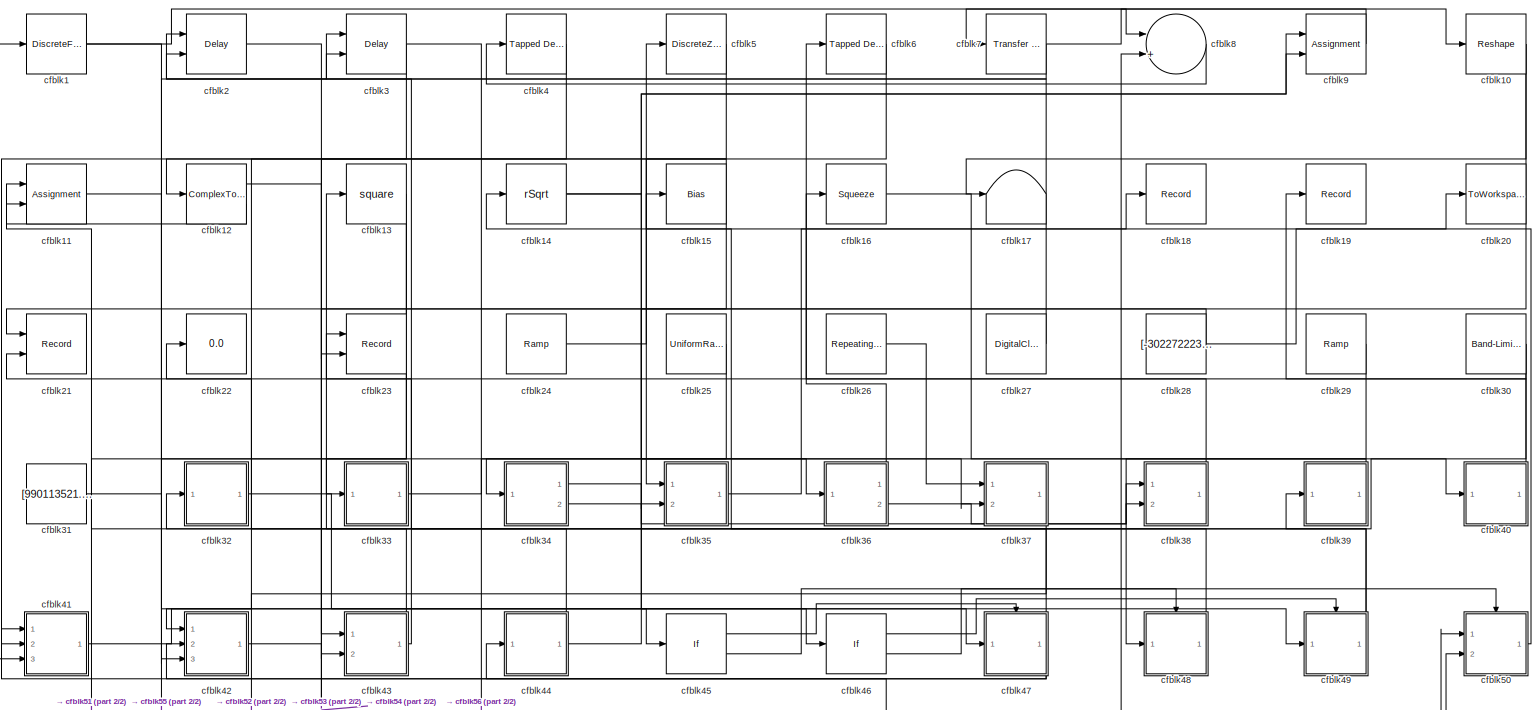
[diagram: root canvas - part 1/2, most of the canvas]
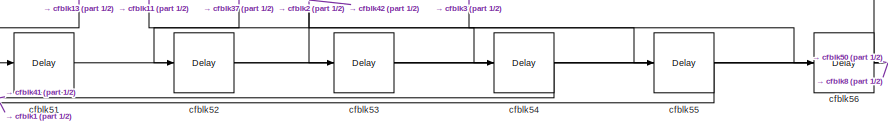
[diagram: root canvas - part 2/2, bottom left region]
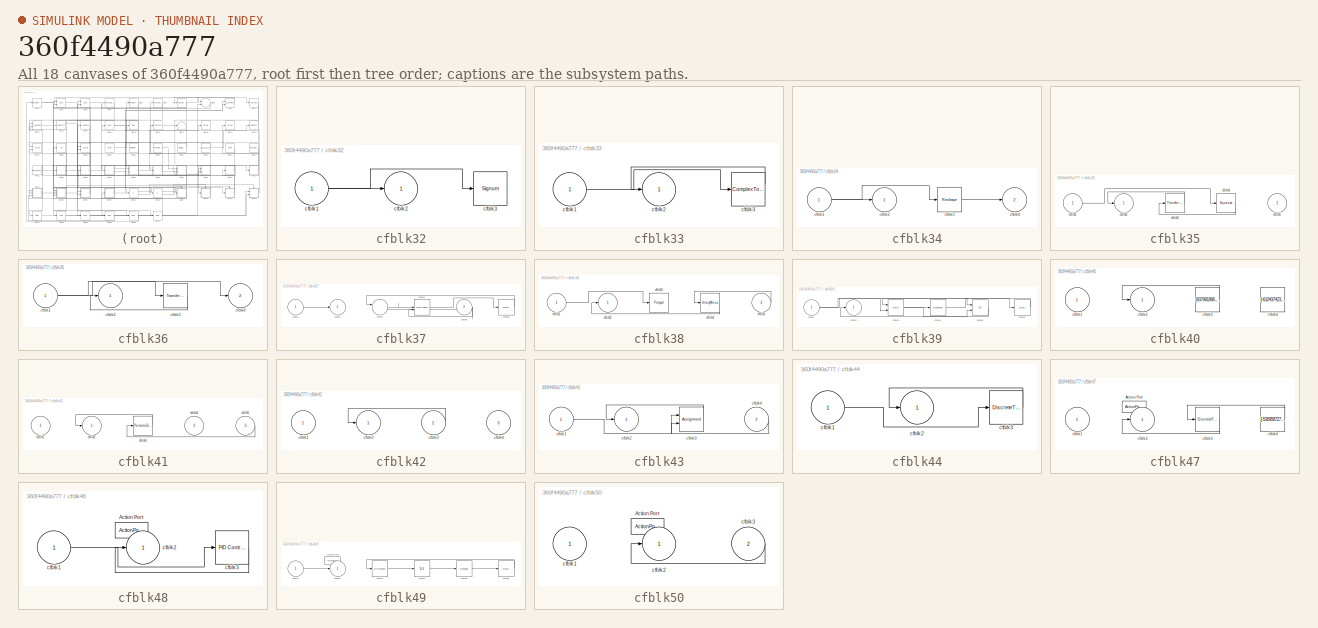
[diagram: thumbnail index - all 18 canvases of the model, root first then tree order]
MODEL slx_360f4490a777
KIND model
CONFIG AbsTol = auto
CONFIG EnableMultiTasking = off
CONFIG FixedStep = auto
CONFIG MaxStep = auto
CONFIG MinStep = auto
CONFIG RelTol = 1e-3
CONFIG SampleTimeConstraint = Unconstrained
CONFIG SolverName = VariableStepAuto
CONFIG StartTime = 0.0
CONFIG StopTime = 10.0
BLOCK [DiscreteFilter] cfblk1
  InputPortMap = u0
  Ports = [1, 1]
  SampleTime = 1
BLOCK [Reshape] cfblk10
  Ports = [1, 1]
BLOCK [Assignment] cfblk11
  DiagnosticForDimensions = Warning
  IndexOptions = Index vector (dialog)
  Indices = 1
  OutputSizes = 1
  Ports = [2, 1]
BLOCK [ComplexToRealImag] cfblk12
  Ports = [1, 2]
BLOCK [Math] cfblk13
  Operator = square
  Ports = [1, 1]
BLOCK [Sqrt] cfblk14
  AlgorithmType = Newton-Raphson
  Operator = rSqrt
BLOCK [Bias] cfblk15
  Bias = [529097126.399303]
  SaturateOnIntegerOverflow = off
BLOCK [Squeeze] cfblk16
BLOCK [Terminator] cfblk17
BLOCK [Record] cfblk18
  FileSettingsInternal = {"entries":[{"content":{"excelSettings":{"content":{},"type":"Streamout.ExcelSettings"}},"type":"Streamout.FileSettingStorage","uuid":"844487d7-c96f-4e93-af2b-bf0dbd47c6b0"}],"packageUris":["http://schema.mathworks.com/mf0/streamout_blocks/R2020a"],"version":"1.0"}
  Ports = [1]
  SignalsInternal = {"entries":[{"content":{"signals":[{"content":{"blockPath":["sampleModel219/cfblk18"],"channel":[],"dimensions":[1],"domain":"sampleModel219/cfblk18","lineColor":"#22b573","plots":[1],"port":1,"sid":[""],"signalID":8491,"signalName":"cfblk35"},"type":"RecordBlkView.Signal","uuid":"787874c2-7397-4e25-ab33-5eaf260bd77f"}]},"type":"RecordBlkView.InputSignals","uuid":"995c5a30-6b30-4493-8084-ea2410340...<+97ch>
  VisualizationBindings = {"sparklinesplugin":{"info":[{"bindingParametersList":[],"subplotID":1}]}}
BLOCK [Record] cfblk19
  FileSettingsInternal = {"entries":[{"content":{"excelSettings":{"content":{},"type":"Streamout.ExcelSettings"}},"type":"Streamout.FileSettingStorage","uuid":"375c4ac3-81d9-474c-aef5-ac18971b0f9f"}],"packageUris":["http://schema.mathworks.com/mf0/streamout_blocks/R2020a"],"version":"1.0"}
  Ports = [1]
  SignalsInternal = {"entries":[{"content":{"signals":[{"content":{"blockPath":["sampleModel219/cfblk19"],"channel":[],"dimensions":[1],"domain":"sampleModel219/cfblk19","lineColor":"#0072bd","plots":[1],"port":1,"sid":[""],"signalID":8495,"signalName":"cfblk40"},"type":"RecordBlkView.Signal","uuid":"74e9c32f-e3b0-48a6-9fbb-b049483dea16"}]},"type":"RecordBlkView.InputSignals","uuid":"63b3f7b2-6be4-4c98-a56e-562f848dc...<+97ch>
  VisualizationBindings = {"sparklinesplugin":{"info":[{"bindingParametersList":[],"subplotID":1}]}}
BLOCK [Delay] cfblk2
  DelayLengthSource = Input port
  InputPortMap = u0,p1
  Ports = [2, 1]
  SampleTime = 1
BLOCK [ToWorkspace] cfblk20
  FixptAsFi = on
  MaxDataPoints = inf
  Ports = [1]
  SampleTime = -1
  SaveFormat = Timeseries
  VariableName = fstzsfb
BLOCK [Record] cfblk21
  CompatibilityTag = XY
  FileSettingsInternal = {"entries":[{"content":{"excelSettings":{"content":{},"type":"Streamout.ExcelSettings"}},"type":"Streamout.FileSettingStorage","uuid":"16af1733-4450-4020-9d88-b2d3b491021f"}],"packageUris":["http://schema.mathworks.com/mf0/streamout_blocks/R2020a"],"version":"1.0"}
  Layout = [1 1]
  Ports = [2]
  SignalsInternal = {"entries":[{"content":{"signals":[{"content":{"blockPath":["sampleModel219/cfblk21"],"channel":[],"dimensions":[1],"domain":"sampleModel219/cfblk21","lineColor":"#a2142f","plots":[1],"port":1,"sid":[""],"signalID":8475,"signalName":"cfblk28"},"type":"RecordBlkView.Signal","uuid":"d653b768-9833-42c3-a752-d42a356465da"},{"content":{"blockPath":["sampleModel219/cfblk21"],"channel":[],"dimensions":[1...<+383ch>
  VisualizationBindings = {"xyplotplugin":{"info":[{"series":[{"bindingParametersList":[{"parameter":"X-Axis","signalID":8475,"signalName":"cfblk28"},{"parameter":"Y-Axis","signalID":8479,"signalName":"cfblk30"}],"seriesID":18144}],"subplotID":1}]}}
BLOCK [Display] cfblk22
  Decimation = 1
  Ports = [1]
BLOCK [Record] cfblk23
  CompatibilityTag = XY
  FileSettingsInternal = {"entries":[{"content":{"excelSettings":{"content":{},"type":"Streamout.ExcelSettings"}},"type":"Streamout.FileSettingStorage","uuid":"9a815e8d-0a58-4833-81d0-cb5a31f32881"}],"packageUris":["http://schema.mathworks.com/mf0/streamout_blocks/R2020a"],"version":"1.0"}
  Layout = [1 1]
  Ports = [2]
  SignalsInternal = {"entries":[{"content":{"signals":[{"content":{"blockPath":["sampleModel219/cfblk23"],"channel":[],"dimensions":[1],"domain":"sampleModel219/cfblk23","lineColor":"#a2142f","plots":[1],"port":1,"sid":[""],"signalID":8483,"signalName":"cfblk43"},"type":"RecordBlkView.Signal","uuid":"355acc69-8332-465b-8783-850e357cb4b5"},{"content":{"blockPath":["sampleModel219/cfblk23"],"channel":[],"dimensions":[1...<+382ch>
  VisualizationBindings = {"xyplotplugin":{"info":[{"series":[{"bindingParametersList":[{"parameter":"X-Axis","signalID":8483,"signalName":"cfblk43"},{"parameter":"Y-Axis","signalID":8487,"signalName":"cfblk3"}],"seriesID":58549}],"subplotID":1}]}}
BLOCK [Reference] cfblk24  REF=simulink/Sources/Ramp
  Ports = [0, 1]
  SourceBlock = simulink/Sources/Ramp
  SourceProductBaseCode = SL
  SourceType = Ramp
BLOCK [UniformRandomNumber] cfblk25
  Maximum = [714476580.782402]
  Minimum = [-4191822465.297766]
  SampleTime = 0.1
  Seed = [94825884.000000]
BLOCK [Reference] cfblk26  REF=simulink/Sources/Repeating
Sequence
Stair
  Ports = [0, 1]
  SourceBlock = simulink/Sources/Repeating\nSequence\nStair
  SourceProductBaseCode = SL
  SourceType = Repeating Sequence Stair
BLOCK [DigitalClock] cfblk27
BLOCK [Constant] cfblk28
  SampleTime = 1
  Value = [-302272223.323654]
BLOCK [Reference] cfblk29  REF=simulink/Sources/Ramp
  Ports = [0, 1]
  SourceBlock = simulink/Sources/Ramp
  SourceProductBaseCode = SL
  SourceType = Ramp
BLOCK [Delay] cfblk3
  DelayLengthSource = Input port
  InputPortMap = u0,p1
  Ports = [2, 1]
  SampleTime = 1
BLOCK [Reference] cfblk30  REF=simulink/Sources/Band-Limited
White Noise
  Ports = [0, 1]
  SourceBlock = simulink/Sources/Band-Limited\nWhite Noise
  SourceProductBaseCode = SL
  SourceType = Band-Limited White Noise.
BLOCK [Constant] cfblk31
  SampleTime = 1
  Value = [990113521.128778]
BLOCK [SubSystem] cfblk32
  Ports = [1, 1]
  RequestExecContextInheritance = off
BLOCK [Inport] cfblk32/cfblk1
BLOCK [Outport] cfblk32/cfblk2
BLOCK [Signum] cfblk32/cfblk3
BLOCK [SubSystem] cfblk33
  Ports = [1, 1]
  RequestExecContextInheritance = off
BLOCK [Inport] cfblk33/cfblk1
BLOCK [Outport] cfblk33/cfblk2
BLOCK [ComplexToRealImag] cfblk33/cfblk3
  Ports = [1, 2]
BLOCK [SubSystem] cfblk34
  Ports = [1, 2]
  RequestExecContextInheritance = off
BLOCK [Inport] cfblk34/cfblk1
BLOCK [Outport] cfblk34/cfblk2
BLOCK [Reshape] cfblk34/cfblk3
  Ports = [1, 1]
BLOCK [Outport] cfblk34/cfblk4
  Port = 2
BLOCK [SubSystem] cfblk35
  Ports = [2, 1]
  RequestExecContextInheritance = off
BLOCK [Inport] cfblk35/cfblk1
BLOCK [Outport] cfblk35/cfblk2
BLOCK [Reference] cfblk35/cfblk3  REF=simulink/Discrete/Transfer Fcn
Lead or Lag
  Ports = [1, 1]
  SourceBlock = simulink/Discrete/Transfer Fcn\nLead or Lag
  SourceProductBaseCode = SL
  SourceType = Lead or Lag Compensator
BLOCK [Squeeze] cfblk35/cfblk4
BLOCK [Inport] cfblk35/cfblk5
  Port = 2
BLOCK [SubSystem] cfblk36
  Ports = [1, 2]
  RequestExecContextInheritance = off
BLOCK [Inport] cfblk36/cfblk1
BLOCK [Outport] cfblk36/cfblk2
BLOCK [Reference] cfblk36/cfblk3  REF=simulink/Discrete/Transfer Fcn
Real Zero
  Ports = [1, 1]
  SourceBlock = simulink/Discrete/Transfer Fcn\nReal Zero
  SourceProductBaseCode = SL
  SourceType = Transfer Fcn Real Zero
BLOCK [Outport] cfblk36/cfblk4
  Port = 2
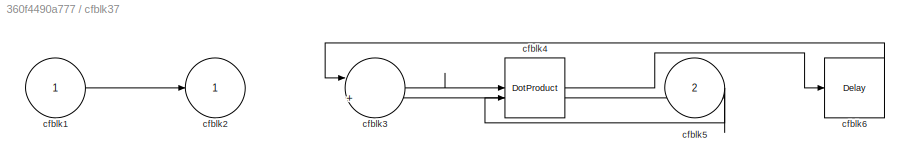
BLOCK [SubSystem] cfblk37
  Ports = [2, 1]
  RequestExecContextInheritance = off
BLOCK [Inport] cfblk37/cfblk1
BLOCK [Outport] cfblk37/cfblk2
BLOCK [Sum] cfblk37/cfblk3
  Inputs = |++
  Ports = [2, 1]
BLOCK [DotProduct] cfblk37/cfblk4
  OutDataTypeStr = Inherit: Inherit via internal rule
BLOCK [Inport] cfblk37/cfblk5
  Port = 2
BLOCK [Delay] cfblk37/cfblk6
  InputPortMap = u0
  Ports = [1, 1]
  SampleTime = 1
BLOCK [SubSystem] cfblk38
  Ports = [2, 1]
  RequestExecContextInheritance = off
BLOCK [Inport] cfblk38/cfblk1
BLOCK [Outport] cfblk38/cfblk2
BLOCK [Polyval] cfblk38/cfblk3
  Coefs = [ +2.081618890e-019, -1.441693666e-014, +4.719686976e-010, -8.536869453e-006, +1.621573104e-001, -8.087801117e+001 ]
BLOCK [UnaryMinus] cfblk38/cfblk4
BLOCK [Inport] cfblk38/cfblk5
  Port = 2
BLOCK [SubSystem] cfblk39
  Ports = [1, 1]
  RequestExecContextInheritance = off
BLOCK [Inport] cfblk39/cfblk1
BLOCK [Outport] cfblk39/cfblk2
BLOCK [Delay] cfblk39/cfblk3
  InputPortMap = u0,e6
  Ports = [2, 1]
  SampleTime = 1
  ShowEnablePort = on
BLOCK [Rounding] cfblk39/cfblk4
BLOCK [Sum] cfblk39/cfblk5
  IconShape = rectangular
  Inputs = --
  Ports = [2, 1]
BLOCK [Delay] cfblk39/cfblk6
  InputPortMap = u0
  Ports = [1, 1]
  SampleTime = 1
BLOCK [Reference] cfblk4  REF=simulink/Discrete/Tapped Delay
  Ports = [1, 1]
  SourceBlock = simulink/Discrete/Tapped Delay
  SourceProductBaseCode = SL
  SourceType = Tapped Delay Line
BLOCK [SubSystem] cfblk40
  Ports = [1, 1]
  RequestExecContextInheritance = off
BLOCK [Inport] cfblk40/cfblk1
BLOCK [Outport] cfblk40/cfblk2
BLOCK [Constant] cfblk40/cfblk3
  SampleTime = 1
  Value = [937991896.756279]
BLOCK [Constant] cfblk40/cfblk4
  SampleTime = 1
  Value = [-610437423.323166]
BLOCK [SubSystem] cfblk41
  Ports = [3, 1]
  RequestExecContextInheritance = off
BLOCK [Inport] cfblk41/cfblk1
BLOCK [Outport] cfblk41/cfblk2
BLOCK [PermuteDimensions] cfblk41/cfblk3
BLOCK [Inport] cfblk41/cfblk4
  Port = 2
BLOCK [Inport] cfblk41/cfblk5
  Port = 3
BLOCK [SubSystem] cfblk42
  Ports = [3, 1]
  RequestExecContextInheritance = off
BLOCK [Inport] cfblk42/cfblk1
BLOCK [Outport] cfblk42/cfblk2
BLOCK [Inport] cfblk42/cfblk3
  Port = 2
BLOCK [Inport] cfblk42/cfblk4
  Port = 3
BLOCK [SubSystem] cfblk43
  Ports = [2, 1]
  RequestExecContextInheritance = off
BLOCK [Inport] cfblk43/cfblk1
BLOCK [Outport] cfblk43/cfblk2
BLOCK [Assignment] cfblk43/cfblk3
  DiagnosticForDimensions = Warning
  IndexOptions = Index vector (dialog)
  Indices = 1
  OutputSizes = 1
  Ports = [2, 1]
BLOCK [Inport] cfblk43/cfblk4
  Port = 2
BLOCK [SubSystem] cfblk44
  Ports = [1, 1]
  RequestExecContextInheritance = off
BLOCK [Inport] cfblk44/cfblk1
BLOCK [Outport] cfblk44/cfblk2
BLOCK [DiscreteTransferFcn] cfblk44/cfblk3
  InputPortMap = u0
  Ports = [1, 1]
  SampleTime = 1
BLOCK [If] cfblk45
  IfExpression = u1 >= 0
  Ports = [1, 2]
  SampleTime = 1
BLOCK [If] cfblk46
  IfExpression = u1 >= 0
  Ports = [1, 2]
  SampleTime = 1
BLOCK [SubSystem] cfblk47
  Ports = [1, 1, 0, 0, 0, 0, 0, 1]
  RequestExecContextInheritance = off
  TreatAsAtomicUnit = on
BLOCK [ActionPort] cfblk47/Action Port
  ActionPortLabel = if(u1 >= 0)
BLOCK [Inport] cfblk47/cfblk1
BLOCK [Outport] cfblk47/cfblk2
BLOCK [DiscreteFir] cfblk47/cfblk3
  InputPortMap = u0
  OutputPortMap = o0
  Ports = [1, 1]
BLOCK [Constant] cfblk47/cfblk4
  SampleTime = 1
  Value = [-536958727.074119]
BLOCK [SubSystem] cfblk48
  Ports = [1, 1, 0, 0, 0, 0, 0, 1]
  RequestExecContextInheritance = off
  TreatAsAtomicUnit = on
BLOCK [ActionPort] cfblk48/Action Port
  ActionPortLabel = else
BLOCK [Inport] cfblk48/cfblk1
BLOCK [Outport] cfblk48/cfblk2
BLOCK [Reference] cfblk48/cfblk3  REF=slpidlib/PID Controller
  Ports = [1, 1]
  SourceBlock = slpidlib/PID Controller
  SourceProductBaseCode = SL
  SourceType = PID 1dof
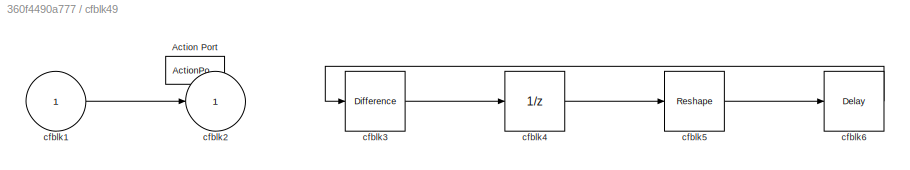
BLOCK [SubSystem] cfblk49
  Ports = [1, 1, 0, 0, 0, 0, 0, 1]
  RequestExecContextInheritance = off
  TreatAsAtomicUnit = on
BLOCK [ActionPort] cfblk49/Action Port
  ActionPortLabel = if(u1 >= 0)
BLOCK [Inport] cfblk49/cfblk1
BLOCK [Outport] cfblk49/cfblk2
BLOCK [Reference] cfblk49/cfblk3  REF=simulink/Discrete/Difference
  Ports = [1, 1]
  SourceBlock = simulink/Discrete/Difference
  SourceProductBaseCode = SL
  SourceType = Difference
BLOCK [UnitDelay] cfblk49/cfblk4
  HasFrameUpgradeWarning = on
  SampleTime = -1
BLOCK [Reshape] cfblk49/cfblk5
  Ports = [1, 1]
BLOCK [Delay] cfblk49/cfblk6
  InputPortMap = u0
  Ports = [1, 1]
BLOCK [DiscreteZeroPole] cfblk5
  Gain = 1
  Poles = [0 0.5]
BLOCK [SubSystem] cfblk50
  Ports = [2, 1, 0, 0, 0, 0, 0, 1]
  RequestExecContextInheritance = off
  TreatAsAtomicUnit = on
BLOCK [ActionPort] cfblk50/Action Port
  ActionPortLabel = else
BLOCK [Inport] cfblk50/cfblk1
BLOCK [Outport] cfblk50/cfblk2
BLOCK [Inport] cfblk50/cfblk3
  Port = 2
BLOCK [Delay] cfblk51
  InputPortMap = u0
  Ports = [1, 1]
  SampleTime = 1
BLOCK [Delay] cfblk52
  InputPortMap = u0
  Ports = [1, 1]
  SampleTime = 1
BLOCK [Delay] cfblk53
  InputPortMap = u0
  Ports = [1, 1]
  SampleTime = 1
BLOCK [Delay] cfblk54
  InputPortMap = u0
  Ports = [1, 1]
  SampleTime = 1
BLOCK [Delay] cfblk55
  InputPortMap = u0
  Ports = [1, 1]
  SampleTime = 1
BLOCK [Delay] cfblk56
  InputPortMap = u0
  Ports = [1, 1]
  SampleTime = 1
BLOCK [Reference] cfblk6  REF=simulink/Discrete/Tapped Delay
  Ports = [1, 1]
  SourceBlock = simulink/Discrete/Tapped Delay
  SourceProductBaseCode = SL
  SourceType = Tapped Delay Line
BLOCK [Reference] cfblk7  REF=simulink/Discrete/Transfer Fcn
Real Zero
  Ports = [1, 1]
  SourceBlock = simulink/Discrete/Transfer Fcn\nReal Zero
  SourceProductBaseCode = SL
  SourceType = Transfer Fcn Real Zero
BLOCK [Sum] cfblk8
  Inputs = |++
  Ports = [2, 1]
BLOCK [Assignment] cfblk9
  DiagnosticForDimensions = Warning
  IndexOptions = Index vector (dialog)
  Indices = 1
  OutputSizes = 1
  Ports = [2, 1]
NET cfblk10:1 -> cfblk17:1, cfblk35:2
LINE cfblk11:1 -> cfblk55:1
LINE cfblk12:1 -> cfblk43:1
LINE cfblk12:2 -> cfblk11:1
NET cfblk13:1 -> cfblk42:3, cfblk51:1
NET cfblk14:1 -> cfblk37:2, cfblk9:2
NET cfblk15:1 -> cfblk12:1, cfblk43:2
LINE cfblk16:1 -> cfblk40:1
NET cfblk1:1 -> cfblk47:1, cfblk8:1
LINE cfblk24:1 -> cfblk5:1
LINE cfblk25:1 -> cfblk34:1
LINE cfblk26:1 -> cfblk37:1
LINE cfblk27:1 -> cfblk2:1
NET cfblk28:1 -> cfblk20:1, cfblk21:1
LINE cfblk29:1 -> cfblk48:1
LINE cfblk2:1 -> cfblk53:1
NET cfblk30:1 -> cfblk21:2, cfblk39:1
LINE cfblk31:1 -> cfblk3:1
NET cfblk32/cfblk1:1 -> cfblk32/cfblk2:1, cfblk32/cfblk3:1
LINE cfblk32:1 -> cfblk46:1
LINE cfblk33/cfblk1:1 -> cfblk33/cfblk3:1
LINE cfblk33/cfblk3:1 -> cfblk33/cfblk2:1
LINE cfblk33:1 -> cfblk36:1
NET cfblk34/cfblk1:1 -> cfblk34/cfblk2:1, cfblk34/cfblk3:1
LINE cfblk34/cfblk3:1 -> cfblk34/cfblk4:1
LINE cfblk34:1 -> cfblk49:1
LINE cfblk34:2 -> cfblk38:2
LINE cfblk35/cfblk1:1 -> cfblk35/cfblk4:1
LINE cfblk35/cfblk3:1 -> cfblk35/cfblk2:1
LINE cfblk35/cfblk4:1 -> cfblk35/cfblk3:1
LINE cfblk35:1 -> cfblk18:1
NET cfblk36/cfblk1:1 -> cfblk36/cfblk3:1, cfblk36/cfblk4:1
LINE cfblk36/cfblk3:1 -> cfblk36/cfblk2:1
LINE cfblk36:1 -> cfblk6:1
LINE cfblk36:2 -> cfblk38:1
LINE cfblk37/cfblk1:1 -> cfblk37/cfblk2:1
LINE cfblk37/cfblk3:1 -> cfblk37/cfblk4:1
LINE cfblk37/cfblk4:1 -> cfblk37/cfblk6:1
NET cfblk37/cfblk5:1 -> cfblk37/cfblk3:2, cfblk37/cfblk4:2
LINE cfblk37/cfblk6:1 -> cfblk37/cfblk3:1
LINE cfblk37:1 -> cfblk52:1
LINE cfblk38/cfblk1:1 -> cfblk38/cfblk3:1
LINE cfblk38/cfblk4:1 -> cfblk38/cfblk2:1
LINE cfblk38/cfblk5:1 -> cfblk38/cfblk4:1
LINE cfblk38:1 -> cfblk16:1
NET cfblk39/cfblk1:1 -> cfblk39/cfblk3:2, cfblk39/cfblk5:1
NET cfblk39/cfblk3:1 -> cfblk39/cfblk4:1, cfblk39/cfblk5:2
LINE cfblk39/cfblk4:1 -> cfblk39/cfblk6:1
LINE cfblk39/cfblk5:1 -> cfblk39/cfblk2:1
LINE cfblk39/cfblk6:1 -> cfblk39/cfblk3:1
LINE cfblk39:1 -> cfblk33:1
NET cfblk3:1 -> cfblk23:2, cfblk56:1
LINE cfblk40/cfblk3:1 -> cfblk40/cfblk2:1
LINE cfblk40:1 -> cfblk19:1
LINE cfblk41/cfblk3:1 -> cfblk41/cfblk2:1
LINE cfblk41/cfblk5:1 -> cfblk41/cfblk3:1
LINE cfblk41:1 -> cfblk45:1
LINE cfblk42/cfblk3:1 -> cfblk42/cfblk2:1
LINE cfblk42:1 -> cfblk54:1
LINE cfblk43/cfblk1:1 -> cfblk43/cfblk3:2
LINE cfblk43/cfblk3:1 -> cfblk43/cfblk2:1
LINE cfblk43/cfblk4:1 -> cfblk43/cfblk3:1
NET cfblk43:1 -> cfblk13:1, cfblk23:1
LINE cfblk44/cfblk1:1 -> cfblk44/cfblk3:1
LINE cfblk44/cfblk3:1 -> cfblk44/cfblk2:1
NET cfblk44:1 -> cfblk32:1, cfblk9:1
LINE cfblk45:1 -> cfblk47:ifaction
LINE cfblk45:2 -> cfblk48:ifaction
LINE cfblk46:1 -> cfblk49:ifaction
LINE cfblk46:2 -> cfblk50:ifaction
LINE cfblk47/cfblk3:1 -> cfblk47/cfblk2:1
LINE cfblk47/cfblk4:1 -> cfblk47/cfblk3:1
NET cfblk47:1 -> cfblk22:1, cfblk42:2, cfblk44:1
LINE cfblk48/cfblk1:1 -> cfblk48/cfblk3:1
LINE cfblk48/cfblk3:1 -> cfblk48/cfblk2:1
LINE cfblk48:1 -> cfblk3:2
LINE cfblk49/cfblk1:1 -> cfblk49/cfblk2:1
LINE cfblk49/cfblk3:1 -> cfblk49/cfblk4:1
LINE cfblk49/cfblk4:1 -> cfblk49/cfblk5:1
LINE cfblk49/cfblk5:1 -> cfblk49/cfblk6:1
LINE cfblk49/cfblk6:1 -> cfblk49/cfblk3:1
NET cfblk49:1 -> cfblk11:2, cfblk15:1
LINE cfblk4:1 -> cfblk41:2
LINE cfblk50/cfblk3:1 -> cfblk50/cfblk2:1
LINE cfblk50:1 -> cfblk14:1
LINE cfblk51:1 -> cfblk50:2
LINE cfblk52:1 -> cfblk8:2
LINE cfblk53:1 -> cfblk50:1
LINE cfblk54:1 -> cfblk41:3
LINE cfblk55:1 -> cfblk1:1
LINE cfblk56:1 -> cfblk41:1
LINE cfblk5:1 -> cfblk35:1
LINE cfblk6:1 -> cfblk42:1
NET cfblk7:1 -> cfblk10:1, cfblk2:2
LINE cfblk8:1 -> cfblk4:1
LINE cfblk9:1 -> cfblk7:1
note: NET lines group one-source signal fan-out (src -> all destinations, sorted); 1:1 wires keep LINE
